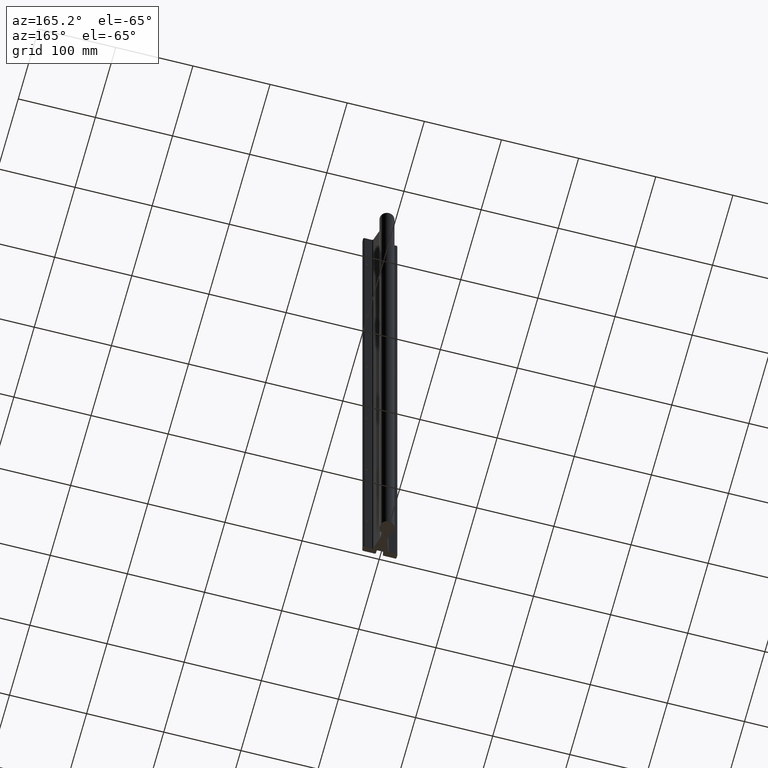
[diagram: clean part render]
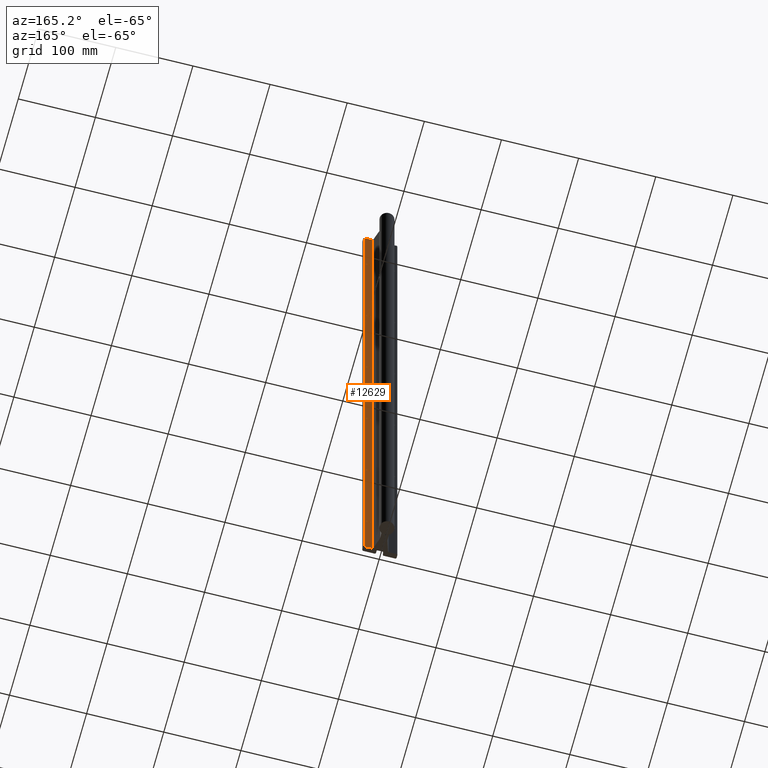
[diagram: same view with one face highlighted and labeled with its STEP entity id]
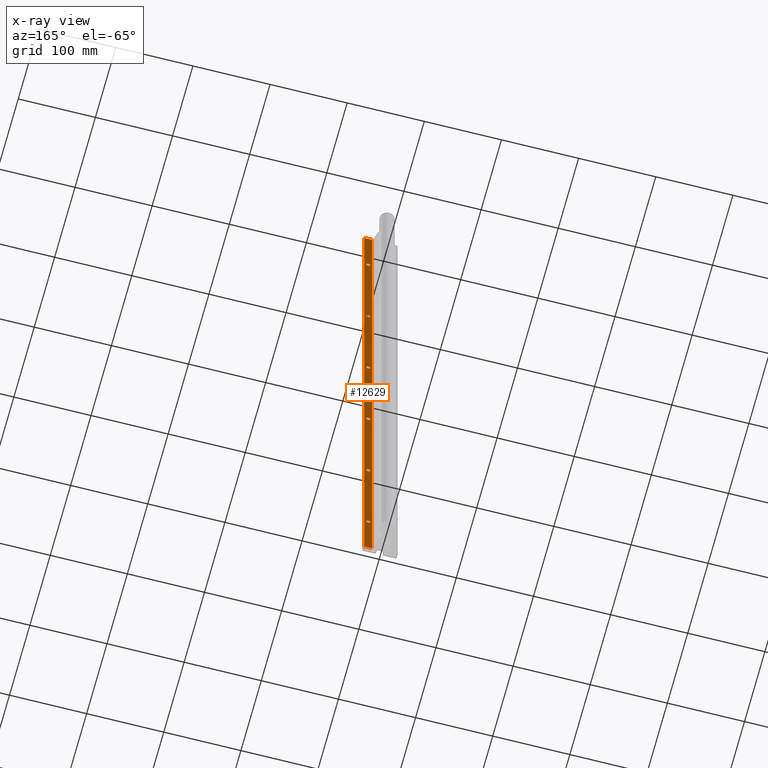
[diagram: x-ray of the same camera — body ghosted, the highlighted face saturated]
A machine part, auxiliary view. The second image highlights one B-rep face of the part: STEP entity #12629.
The next image is the same camera in x-ray: the body ghosted, the highlighted face saturated — about 0% of this face is hidden behind the body in this view.
In plain terms, the highlighted planar face has unit normal (0, 1, 0).
Its self-contained STEP definition (entity closure, byte-faithful):
#155 = DIRECTION ( 'NONE',  ( 2.671704266472630380E-16, 1.000000000000000000, -0.000000000000000000 ) ) ;
#433 = VERTEX_POINT ( 'NONE', #894 ) ;
#652 = AXIS2_PLACEMENT_3D ( 'NONE', #2476, #155, #8502 ) ;
#711 = DIRECTION ( 'NONE',  ( -1.000000000000000000, 3.090325784688081574E-16, 0.000000000000000000 ) ) ;
#866 = EDGE_CURVE ( 'NONE', #1044, #3772, #5947, .T. ) ;
#868 = DIRECTION ( 'NONE',  ( -1.000000000000000000, 3.090325784688081574E-16, 0.000000000000000000 ) ) ;
#894 = CARTESIAN_POINT ( 'NONE',  ( 0.6250000000000000000, 0.2500000000000000555, -8.889500000000001734 ) ) ;
#937 = AXIS2_PLACEMENT_3D ( 'NONE', #2540, #6669, #8882 ) ;
#1044 = VERTEX_POINT ( 'NONE', #12727 ) ;
#1113 = DIRECTION ( 'NONE',  ( -1.000000000000000000, 3.090325784688081574E-16, 0.000000000000000000 ) ) ;
#1117 = CARTESIAN_POINT ( 'NONE',  ( 0.8149999999999996136, 0.2500000000000001110, 0.000000000000000000 ) ) ;
#1203 = EDGE_CURVE ( 'NONE', #10627, #12789, #10610, .T. ) ;
#1231 = FACE_BOUND ( 'NONE', #2834, .T. ) ;
#1240 = ORIENTED_EDGE ( 'NONE', *, *, #1203, .T. ) ;
#1351 = DIRECTION ( 'NONE',  ( -2.671704266472630380E-16, -1.000000000000000000, 0.000000000000000000 ) ) ;
#1495 = VERTEX_POINT ( 'NONE', #9453 ) ;
#1658 = VERTEX_POINT ( 'NONE', #5282 ) ;
#1660 = DIRECTION ( 'NONE',  ( -1.000000000000000000, 3.090325784688081574E-16, 0.000000000000000000 ) ) ;
#1750 = DIRECTION ( 'NONE',  ( -2.671704266472630380E-16, -1.000000000000000000, 0.000000000000000000 ) ) ;
#1797 = AXIS2_PLACEMENT_3D ( 'NONE', #4215, #10256, #12530 ) ;
#1857 = ORIENTED_EDGE ( 'NONE', *, *, #6166, .T. ) ;
#1954 = ORIENTED_EDGE ( 'NONE', *, *, #2874, .T. ) ;
#1979 = DIRECTION ( 'NONE',  ( -2.671704266472630380E-16, -1.000000000000000000, 0.000000000000000000 ) ) ;
#2008 = CARTESIAN_POINT ( 'NONE',  ( 0.8149999999999996136, 0.2500000000000001110, -38.10463218188032641 ) ) ;
#2076 = CARTESIAN_POINT ( 'NONE',  ( 0.6250000000000000000, 0.2500000000000000555, -27.11050000000000537 ) ) ;
#2196 = CIRCLE ( 'NONE', #11837, 0.1104999999999999594 ) ;
#2213 = EDGE_CURVE ( 'NONE', #11816, #6677, #12366, .T. ) ;
#2216 = FACE_OUTER_BOUND ( 'NONE', #9713, .T. ) ;
#2259 = CARTESIAN_POINT ( 'NONE',  ( 0.4315582357000011249, 0.2500000000000002220, -38.10463218188032641 ) ) ;
#2401 = CARTESIAN_POINT ( 'NONE',  ( 0.6250000000000000000, 0.2500000000000000555, -21.00000000000000355 ) ) ;
#2476 = CARTESIAN_POINT ( 'NONE',  ( 0.8149999999999996136, 0.2500000000000001110, -38.10463218188032641 ) ) ;
#2540 = CARTESIAN_POINT ( 'NONE',  ( 0.6250000000000000000, 0.2500000000000000555, -3.000000000000000444 ) ) ;
#2560 = AXIS2_PLACEMENT_3D ( 'NONE', #12913, #1351, #7635 ) ;
#2760 = EDGE_LOOP ( 'NONE', ( #11796, #12753 ) ) ;
#2834 = EDGE_LOOP ( 'NONE', ( #1857, #1240 ) ) ;
#2874 = EDGE_CURVE ( 'NONE', #11518, #1658, #11086, .T. ) ;
#3016 = EDGE_CURVE ( 'NONE', #11568, #8719, #5089, .T. ) ;
#3374 = FACE_BOUND ( 'NONE', #11055, .T. ) ;
#3422 = EDGE_CURVE ( 'NONE', #1495, #8000, #7573, .T. ) ;
#3433 = AXIS2_PLACEMENT_3D ( 'NONE', #6813, #6735, #7935 ) ;
#3663 = EDGE_LOOP ( 'NONE', ( #4617, #10271 ) ) ;
#3742 = DIRECTION ( 'NONE',  ( 0.000000000000000000, 0.000000000000000000, 1.000000000000000000 ) ) ;
#3772 = VERTEX_POINT ( 'NONE', #2076 ) ;
#4012 = AXIS2_PLACEMENT_3D ( 'NONE', #8035, #1750, #13371 ) ;
#4215 = CARTESIAN_POINT ( 'NONE',  ( 0.6250000000000000000, 0.2500000000000000555, -15.00000000000000000 ) ) ;
#4223 = EDGE_CURVE ( 'NONE', #8719, #1658, #4236, .T. ) ;
#4236 = LINE ( 'NONE', #1117, #6498 ) ;
#4617 = ORIENTED_EDGE ( 'NONE', *, *, #8768, .T. ) ;
#4669 = EDGE_LOOP ( 'NONE', ( #5981, #6845 ) ) ;
#4792 = EDGE_CURVE ( 'NONE', #433, #6852, #11398, .T. ) ;
#5004 = VECTOR ( 'NONE', #7051, 39.37007874015748143 ) ;
#5089 = LINE ( 'NONE', #2008, #5004 ) ;
#5282 = CARTESIAN_POINT ( 'NONE',  ( 0.4315582357000011249, 0.2500000000000002776, 0.000000000000000000 ) ) ;
#5356 = CIRCLE ( 'NONE', #6225, 0.1104999999999999594 ) ;
#5374 = CARTESIAN_POINT ( 'NONE',  ( 0.6250000000000000000, 0.2500000000000000555, -14.88949999999999996 ) ) ;
#5494 = CIRCLE ( 'NONE', #1797, 0.1104999999999999594 ) ;
#5586 = EDGE_CURVE ( 'NONE', #11518, #11568, #12476, .T. ) ;
#5947 = CIRCLE ( 'NONE', #4012, 0.1104999999999999594 ) ;
#5981 = ORIENTED_EDGE ( 'NONE', *, *, #11667, .T. ) ;
#6166 = EDGE_CURVE ( 'NONE', #12789, #10627, #9673, .T. ) ;
#6225 = AXIS2_PLACEMENT_3D ( 'NONE', #2401, #8546, #12769 ) ;
#6325 = DIRECTION ( 'NONE',  ( 1.000000000000000000, -2.671704266472630380E-16, 0.000000000000000000 ) ) ;
#6366 = CIRCLE ( 'NONE', #8131, 0.1104999999999999594 ) ;
#6429 = FACE_BOUND ( 'NONE', #2760, .T. ) ;
#6498 = VECTOR ( 'NONE', #9351, 39.37007874015748143 ) ;
#6669 = DIRECTION ( 'NONE',  ( -2.671704266472630380E-16, -1.000000000000000000, 0.000000000000000000 ) ) ;
#6677 = VERTEX_POINT ( 'NONE', #9732 ) ;
#6735 = DIRECTION ( 'NONE',  ( -2.671704266472630380E-16, -1.000000000000000000, 0.000000000000000000 ) ) ;
#6780 = CARTESIAN_POINT ( 'NONE',  ( 0.6250000000000000000, 0.2500000000000000555, -9.000000000000001776 ) ) ;
#6813 = CARTESIAN_POINT ( 'NONE',  ( 0.6250000000000000000, 0.2500000000000000555, -9.000000000000001776 ) ) ;
#6845 = ORIENTED_EDGE ( 'NONE', *, *, #12523, .T. ) ;
#6852 = VERTEX_POINT ( 'NONE', #12725 ) ;
#6950 = CARTESIAN_POINT ( 'NONE',  ( 0.6250000000000000000, 0.2500000000000000555, -33.00000000000000000 ) ) ;
#7051 = DIRECTION ( 'NONE',  ( 0.000000000000000000, 0.000000000000000000, 1.000000000000000000 ) ) ;
#7114 = CARTESIAN_POINT ( 'NONE',  ( 0.8149999999999996136, 0.2500000000000001110, 0.000000000000000000 ) ) ;
#7138 = AXIS2_PLACEMENT_3D ( 'NONE', #12820, #13163, #13091 ) ;
#7530 = FACE_BOUND ( 'NONE', #3663, .T. ) ;
#7549 = ORIENTED_EDGE ( 'NONE', *, *, #5586, .F. ) ;
#7573 = CIRCLE ( 'NONE', #7138, 0.1104999999999999594 ) ;
#7622 = ORIENTED_EDGE ( 'NONE', *, *, #9640, .T. ) ;
#7635 = DIRECTION ( 'NONE',  ( -1.000000000000000000, 3.090325784688081574E-16, 0.000000000000000000 ) ) ;
#7641 = EDGE_CURVE ( 'NONE', #8000, #1495, #5356, .T. ) ;
#7648 = PLANE ( 'NONE',  #652 ) ;
#7658 = DIRECTION ( 'NONE',  ( -1.000000000000000000, 3.090325784688081574E-16, 0.000000000000000000 ) ) ;
#7744 = CARTESIAN_POINT ( 'NONE',  ( 0.6250000000000000000, 0.2500000000000000555, -33.00000000000000000 ) ) ;
#7819 = ORIENTED_EDGE ( 'NONE', *, *, #4792, .T. ) ;
#7935 = DIRECTION ( 'NONE',  ( -1.000000000000000000, 3.090325784688081574E-16, 0.000000000000000000 ) ) ;
#8000 = VERTEX_POINT ( 'NONE', #12828 ) ;
#8009 = VECTOR ( 'NONE', #3742, 39.37007874015748143 ) ;
#8035 = CARTESIAN_POINT ( 'NONE',  ( 0.6250000000000000000, 0.2500000000000000555, -27.00000000000000355 ) ) ;
#8131 = AXIS2_PLACEMENT_3D ( 'NONE', #10877, #9592, #7658 ) ;
#8325 = ORIENTED_EDGE ( 'NONE', *, *, #3016, .F. ) ;
#8395 = AXIS2_PLACEMENT_3D ( 'NONE', #6950, #1979, #868 ) ;
#8502 = DIRECTION ( 'NONE',  ( -1.000000000000000000, 2.671704266472630380E-16, 0.000000000000000000 ) ) ;
#8546 = DIRECTION ( 'NONE',  ( -2.671704266472630380E-16, -1.000000000000000000, 0.000000000000000000 ) ) ;
#8719 = VERTEX_POINT ( 'NONE', #7114 ) ;
#8768 = EDGE_CURVE ( 'NONE', #3772, #1044, #10460, .T. ) ;
#8882 = DIRECTION ( 'NONE',  ( -1.000000000000000000, 3.090325784688081574E-16, 0.000000000000000000 ) ) ;
#8990 = CARTESIAN_POINT ( 'NONE',  ( 0.8149999999999996136, 0.2500000000000001110, -36.00000000000000000 ) ) ;
#9351 = DIRECTION ( 'NONE',  ( -1.000000000000000000, 2.671704266472630380E-16, 0.000000000000000000 ) ) ;
#9414 = CARTESIAN_POINT ( 'NONE',  ( 0.8149999999999996136, 0.2500000000000001110, -36.00000000000000000 ) ) ;
#9452 = VERTEX_POINT ( 'NONE', #10249 ) ;
#9453 = CARTESIAN_POINT ( 'NONE',  ( 0.6250000000000000000, 0.2500000000000000555, -20.88950000000000173 ) ) ;
#9592 = DIRECTION ( 'NONE',  ( -2.671704266472630380E-16, -1.000000000000000000, 0.000000000000000000 ) ) ;
#9640 = EDGE_CURVE ( 'NONE', #6852, #433, #12221, .T. ) ;
#9647 = FACE_BOUND ( 'NONE', #11113, .T. ) ;
#9673 = CIRCLE ( 'NONE', #13249, 0.1104999999999999594 ) ;
#9713 = EDGE_LOOP ( 'NONE', ( #7549, #1954, #13572, #8325 ) ) ;
#9732 = CARTESIAN_POINT ( 'NONE',  ( 0.6250000000000000000, 0.2500000000000000555, -32.88949999999999818 ) ) ;
#9826 = DIRECTION ( 'NONE',  ( -2.671704266472630380E-16, -1.000000000000000000, 0.000000000000000000 ) ) ;
#10195 = CARTESIAN_POINT ( 'NONE',  ( 0.4315582357000011249, 0.2500000000000002220, -36.00000000000000000 ) ) ;
#10249 = CARTESIAN_POINT ( 'NONE',  ( 0.6250000000000000000, 0.2500000000000000555, -15.11050000000000004 ) ) ;
#10256 = DIRECTION ( 'NONE',  ( -2.671704266472630380E-16, -1.000000000000000000, 0.000000000000000000 ) ) ;
#10271 = ORIENTED_EDGE ( 'NONE', *, *, #866, .T. ) ;
#10460 = CIRCLE ( 'NONE', #2560, 0.1104999999999999594 ) ;
#10515 = CARTESIAN_POINT ( 'NONE',  ( 0.6250000000000000000, 0.2500000000000000555, -3.110500000000000043 ) ) ;
#10516 = ORIENTED_EDGE ( 'NONE', *, *, #3422, .T. ) ;
#10558 = CARTESIAN_POINT ( 'NONE',  ( 0.6250000000000000000, 0.2500000000000000555, -3.000000000000000444 ) ) ;
#10610 = CIRCLE ( 'NONE', #937, 0.1104999999999999594 ) ;
#10627 = VERTEX_POINT ( 'NONE', #13005 ) ;
#10697 = EDGE_CURVE ( 'NONE', #6677, #11816, #2196, .T. ) ;
#10810 = DIRECTION ( 'NONE',  ( -2.671704266472630380E-16, -1.000000000000000000, 0.000000000000000000 ) ) ;
#10877 = CARTESIAN_POINT ( 'NONE',  ( 0.6250000000000000000, 0.2500000000000000555, -15.00000000000000000 ) ) ;
#11022 = VECTOR ( 'NONE', #6325, 39.37007874015748143 ) ;
#11055 = EDGE_LOOP ( 'NONE', ( #11551, #10516 ) ) ;
#11086 = LINE ( 'NONE', #2259, #8009 ) ;
#11113 = EDGE_LOOP ( 'NONE', ( #7622, #7819 ) ) ;
#11398 = CIRCLE ( 'NONE', #13386, 0.1104999999999999594 ) ;
#11518 = VERTEX_POINT ( 'NONE', #10195 ) ;
#11551 = ORIENTED_EDGE ( 'NONE', *, *, #7641, .T. ) ;
#11568 = VERTEX_POINT ( 'NONE', #8990 ) ;
#11667 = EDGE_CURVE ( 'NONE', #9452, #13011, #6366, .T. ) ;
#11758 = FACE_BOUND ( 'NONE', #4669, .T. ) ;
#11796 = ORIENTED_EDGE ( 'NONE', *, *, #2213, .T. ) ;
#11816 = VERTEX_POINT ( 'NONE', #13154 ) ;
#11837 = AXIS2_PLACEMENT_3D ( 'NONE', #7744, #10810, #1660 ) ;
#12221 = CIRCLE ( 'NONE', #3433, 0.1104999999999999594 ) ;
#12366 = CIRCLE ( 'NONE', #8395, 0.1104999999999999594 ) ;
#12476 = LINE ( 'NONE', #9414, #11022 ) ;
#12523 = EDGE_CURVE ( 'NONE', #13011, #9452, #5494, .T. ) ;
#12530 = DIRECTION ( 'NONE',  ( -1.000000000000000000, 3.090325784688081574E-16, 0.000000000000000000 ) ) ;
#12629 = ADVANCED_FACE ( 'NONE', ( #3374, #7530, #9647, #11758, #6429, #1231, #2216 ), #7648, .T. ) ;
#12725 = CARTESIAN_POINT ( 'NONE',  ( 0.6250000000000000000, 0.2500000000000000555, -9.110500000000001819 ) ) ;
#12727 = CARTESIAN_POINT ( 'NONE',  ( 0.6250000000000000000, 0.2500000000000000555, -26.88950000000000173 ) ) ;
#12753 = ORIENTED_EDGE ( 'NONE', *, *, #10697, .T. ) ;
#12769 = DIRECTION ( 'NONE',  ( -1.000000000000000000, 3.090325784688081574E-16, 0.000000000000000000 ) ) ;
#12789 = VERTEX_POINT ( 'NONE', #10515 ) ;
#12819 = DIRECTION ( 'NONE',  ( -2.671704266472630380E-16, -1.000000000000000000, 0.000000000000000000 ) ) ;
#12820 = CARTESIAN_POINT ( 'NONE',  ( 0.6250000000000000000, 0.2500000000000000555, -21.00000000000000355 ) ) ;
#12828 = CARTESIAN_POINT ( 'NONE',  ( 0.6250000000000000000, 0.2500000000000000555, -21.11050000000000537 ) ) ;
#12913 = CARTESIAN_POINT ( 'NONE',  ( 0.6250000000000000000, 0.2500000000000000555, -27.00000000000000355 ) ) ;
#13005 = CARTESIAN_POINT ( 'NONE',  ( 0.6250000000000000000, 0.2500000000000000555, -2.889500000000000401 ) ) ;
#13011 = VERTEX_POINT ( 'NONE', #5374 ) ;
#13091 = DIRECTION ( 'NONE',  ( -1.000000000000000000, 3.090325784688081574E-16, 0.000000000000000000 ) ) ;
#13154 = CARTESIAN_POINT ( 'NONE',  ( 0.6250000000000000000, 0.2500000000000000555, -33.11050000000000182 ) ) ;
#13163 = DIRECTION ( 'NONE',  ( -2.671704266472630380E-16, -1.000000000000000000, 0.000000000000000000 ) ) ;
#13249 = AXIS2_PLACEMENT_3D ( 'NONE', #10558, #12819, #1113 ) ;
#13371 = DIRECTION ( 'NONE',  ( -1.000000000000000000, 3.090325784688081574E-16, 0.000000000000000000 ) ) ;
#13386 = AXIS2_PLACEMENT_3D ( 'NONE', #6780, #9826, #711 ) ;
#13572 = ORIENTED_EDGE ( 'NONE', *, *, #4223, .F. ) ;